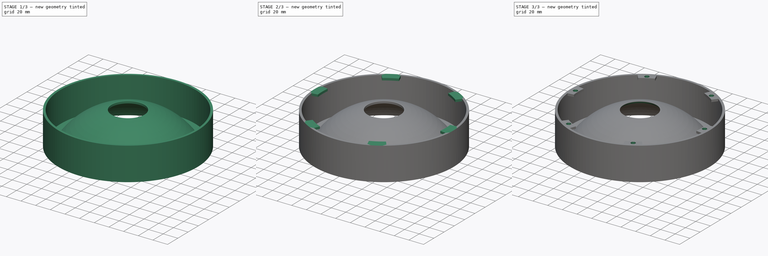
[diagram: build sequence overview — one tinted view per stage of 3, left to right]
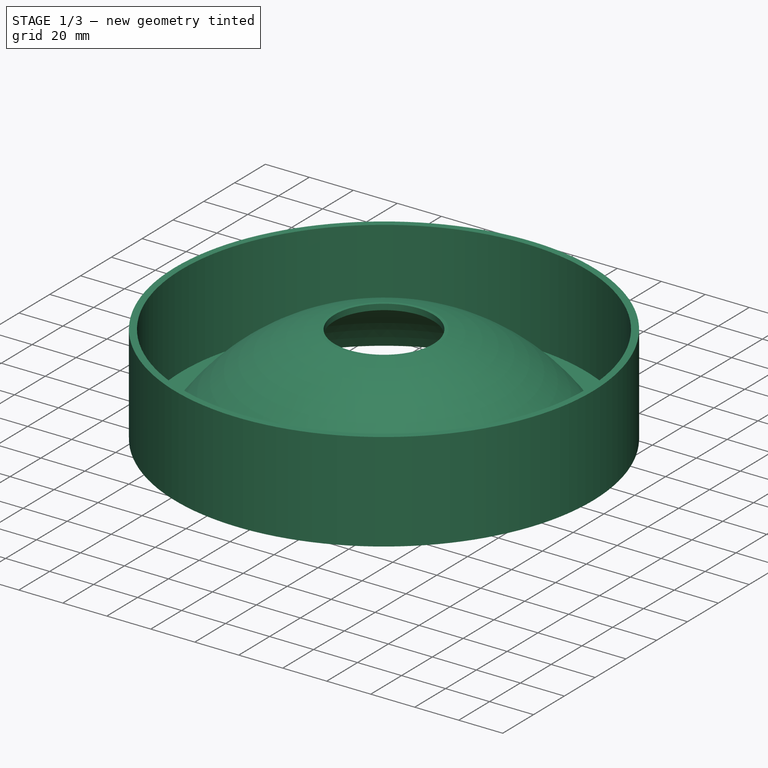
[diagram: stage 1 of 3 — iso view after this stage's code; geometry added in this stage tinted green]
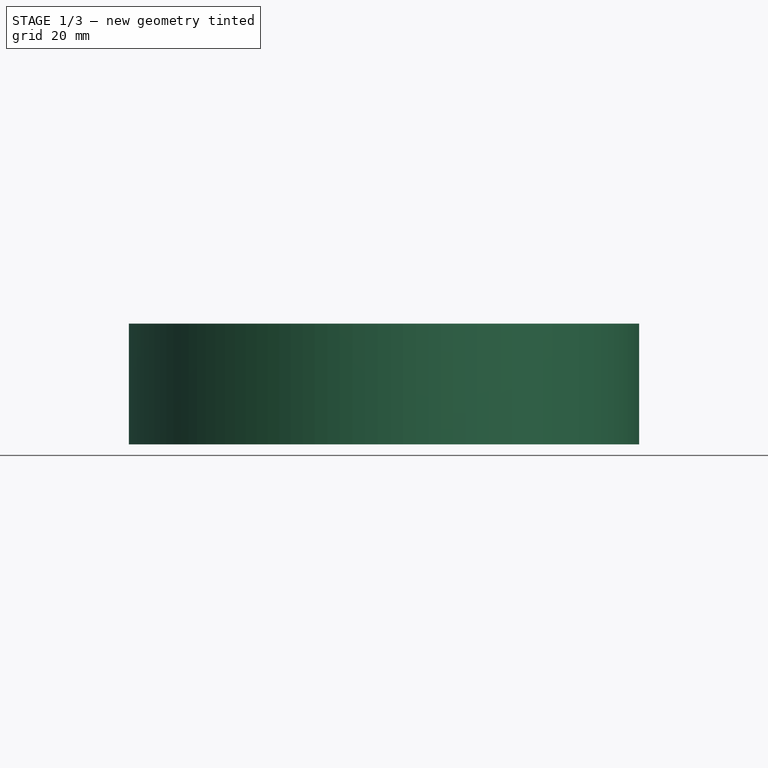
[diagram: stage 1 of 3 — front view after this stage's code; geometry added in this stage tinted green]
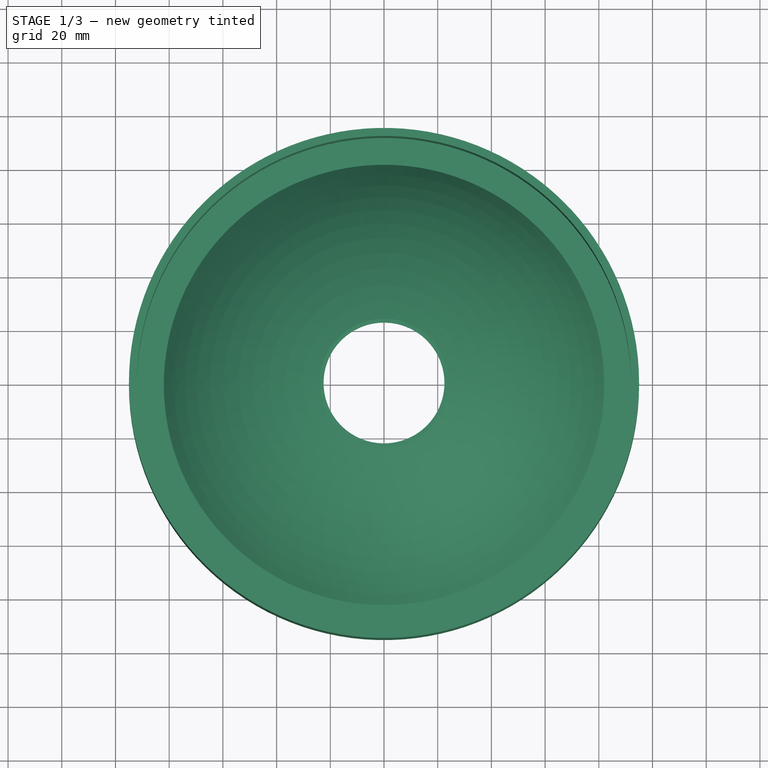
[diagram: stage 1 of 3 — top view after this stage's code; geometry added in this stage tinted green]
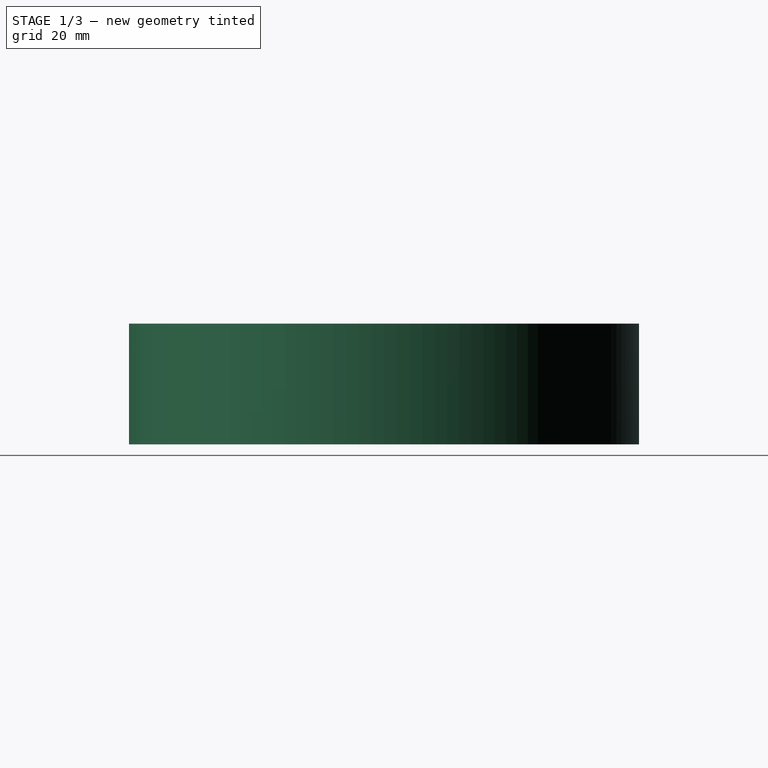
[diagram: stage 1 of 3 — right view after this stage's code; geometry added in this stage tinted green]
FCSTD DOCUMENT  (FreeCAD 0.19R24291 (Git))
Label: tms_v2_base
License: All rights reserved
LicenseURL: http://en.wikipedia.org/wiki/All_rights_reserved
objects: Sketcher::SketchObject×5, PartDesign::Pocket×3, PartDesign::PolarPattern×2, PartDesign::Revolution×1, PartDesign::Pad×1, PartDesign::Chamfer×1, PartDesign::Body×1
note: 20 computed .brp shape members not serialized (recipe doc carries the construction recipe); baked Part::Feature solids carry a one-line shape summary decoded from their .brp

FEATURE [Sketcher::SketchObject] Sketch
  FullyConstrained = false
  MapMode = 5
  Placement = pos=(0,0,0) rot=(1,0,0;1.5708rad)
  Support = -> [XZ_Plane]
  sketch-geometry (8):
    g0: LineSegment StartX=-95 StartY=45 StartZ=0 EndX=-95 EndY=0 EndZ=0
    g1: LineSegment StartX=-95 StartY=0 StartZ=0 EndX=-82 EndY=0 EndZ=0
    g2: ArcOfCircle CenterX=0 CenterY=-52.2111 CenterZ=0 NormalX=0 NormalY=0 NormalZ=1 AngleXU=0 Radius=97.2111 StartAngle=1.5708 EndAngle=2.57461
    g3: LineSegment StartX=6e-15 StartY=45 StartZ=0 EndX=6e-15 EndY=48 EndZ=0
    g4: ArcOfCircle CenterX=0 CenterY=-49.2111 CenterZ=0 NormalX=0 NormalY=0 NormalZ=1 AngleXU=0 Radius=97.2111 StartAngle=1.5708 EndAngle=2.57461
    g5: LineSegment StartX=-82 StartY=3 StartZ=0 EndX=-92 EndY=3 EndZ=0
    g6: LineSegment StartX=-92 StartY=3 StartZ=0 EndX=-92 EndY=45 EndZ=0
    g7: LineSegment StartX=-92 StartY=45 StartZ=0 EndX=-95 EndY=45 EndZ=0
  constraints (25):
    c: Vertical(g0)
    c: Coincident(g0,g1)
    c: Horizontal(g1)
    c: Coincident(g2,g3)
    c: Vertical(g3)
    c: Coincident(g4,g5)
    c: Horizontal(g5)
    c: Coincident(g5,g6)
    c: Vertical(g6)
    c: Coincident(g6,g7)
    c: Coincident(g3,g4)
    c: Coincident(g1,g2)
    c: Horizontal(g7)
    c: Coincident(g0,g7)
    c: DistanceX(g7,g7) = 3
    c: DistanceX(g0,g-1) = 95
    c: DistanceY(g0,g5) = 3
    c: DistanceY(g0,g0) = 45
    c: DistanceY(g2,g3) = 3
    c: DistanceY(g-1,g3) = 48
    c: PointOnObject(g0,g-1)
    c: DistanceY(g2,g4) = 3
    c: PointOnObject(g2,g-2)
    c: PointOnObject(g4,g-2)
    c: DistanceX(g5,g5) = 10
FEATURE [PartDesign::Revolution] Revolution
  Angle = 360
  Axis = (0,2e-16,1)
  Base = (0,0,0)
  Placement = pos=(0,0,0) rot=(1,0,0;1.5708rad)
  Profile = -> Sketch
  ReferenceAxis = -> Sketch [V_Axis]
  Refine = true
FEATURE [Sketcher::SketchObject] Sketch001
  FullyConstrained = true
  MapMode = 5
  Support = -> [XY_Plane]
  sketch-geometry (1):
    g0: Circle CenterX=0 CenterY=0 CenterZ=0 NormalX=0 NormalY=0 NormalZ=1 AngleXU=0 Radius=22.5
  constraints (2):
    c: Coincident(g0,g-1)
    c: Radius(g0) = 22.5
FEATURE [Sketcher::SketchObject] Sketch002
  FullyConstrained = true
  MapMode = 5
  Placement = pos=(0,0,0) rot=(1,0,0;1.5708rad)
  Support = -> [XZ_Plane]
  sketch-geometry (4):
    g0: LineSegment StartX=-75 StartY=65 StartZ=0 EndX=75 EndY=65 EndZ=0
    g1: LineSegment StartX=75 StartY=65 StartZ=0 EndX=75 EndY=45 EndZ=0
    g2: LineSegment StartX=75 StartY=45 StartZ=0 EndX=-75 EndY=45 EndZ=0
    g3: LineSegment StartX=-75 StartY=45 StartZ=0 EndX=-75 EndY=65 EndZ=0
  constraints (11):
    c: Coincident(g0,g1)
    c: Coincident(g1,g2)
    c: Coincident(g2,g3)
    c: Coincident(g3,g0)
    c: Horizontal(g2)
    c: Vertical(g1)
    c: Vertical(g3)
    c: Symmetric(g0,g0,g-2)
    c: DistanceX(g0,g0) = 150
    c: DistanceY(g-1,g2) = 45
    c: DistanceY(g3,g3) = 20
FEATURE [PartDesign::Pocket] Pocket
  BaseFeature = -> Revolution
  Length = 100
  Length2 = 100
  Midplane = true
  Placement = pos=(0,0,0) rot=(1,0,0;1.5708rad)
  Profile = -> Sketch002
  Refine = true
  Type = 0
FEATURE [PartDesign::Pocket] Pocket001
  BaseFeature = -> Pocket
  Length = 5
  Length2 = 100
  Placement = pos=(0,0,0) rot=(1,0,0;1.5708rad)
  Profile = -> Sketch001
  Refine = true
  Reversed = true
  Type = 1
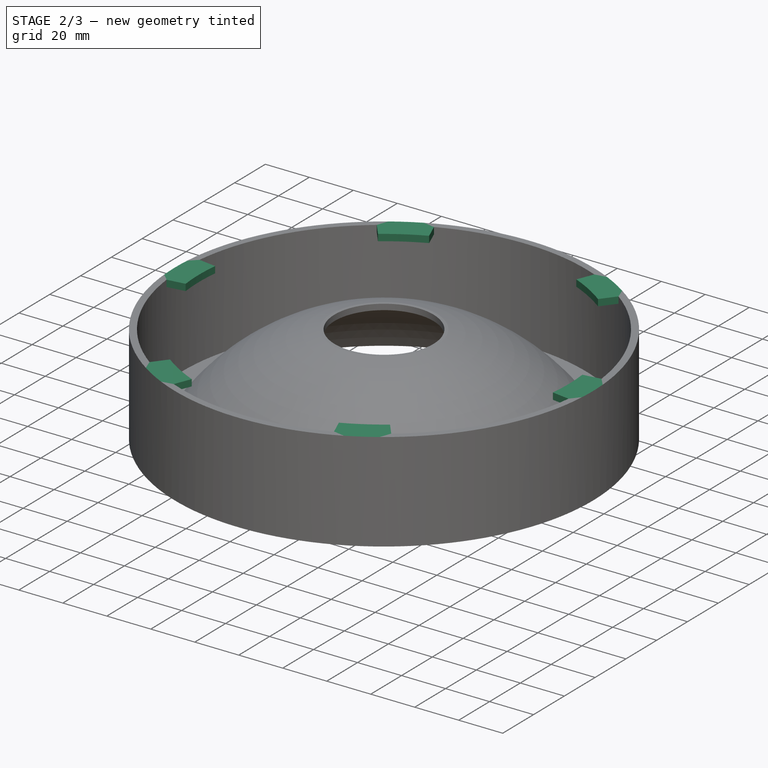
[diagram: stage 2 of 3 — iso view after this stage's code; geometry added in this stage tinted green]
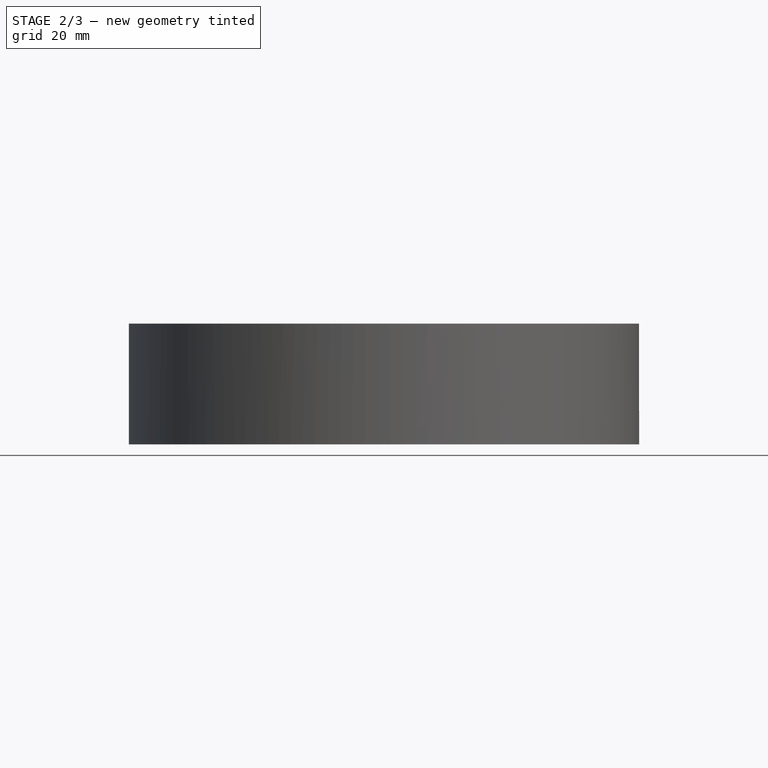
[diagram: stage 2 of 3 — front view after this stage's code; geometry added in this stage tinted green]
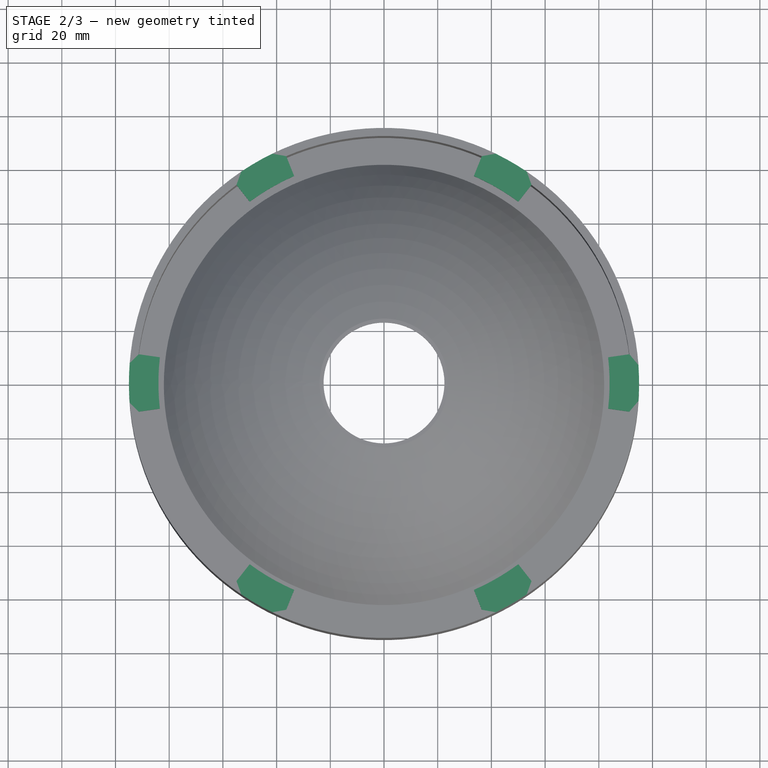
[diagram: stage 2 of 3 — top view after this stage's code; geometry added in this stage tinted green]
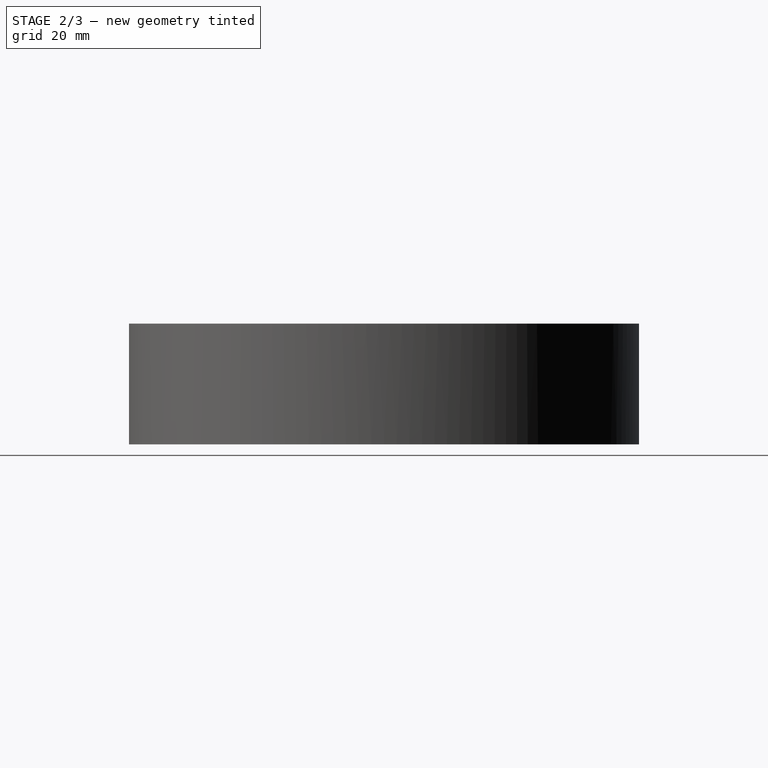
[diagram: stage 2 of 3 — right view after this stage's code; geometry added in this stage tinted green]
FEATURE [Sketcher::SketchObject] Sketch003
  AttachmentOffset = pos=(0,0,45) rot=(0,0,1;0rad)
  ExternalGeometry = -> [Pocket001]
  FullyConstrained = false
  MapMode = 5
  Placement = pos=(0,0,45) rot=(0,0,1;0rad)
  Support = -> [XY_Plane]
  sketch-geometry (8):
    g0: ArcOfCircle CenterX=0 CenterY=0 CenterZ=0 NormalX=0 NormalY=0 NormalZ=1 AngleXU=0 Radius=95 StartAngle=3.02434 EndAngle=3.25884
    g1: LineSegment StartX=0 StartY=0 StartZ=0 EndX=-94.3478 EndY=11.113 EndZ=0
    g2: LineSegment StartX=0 StartY=0 StartZ=0 EndX=-94.3478 EndY=-11.113 EndZ=0
    g3: ArcOfCircle CenterX=0.979522 CenterY=8.4e-15 CenterZ=0 NormalX=0 NormalY=0 NormalZ=1 AngleXU=0 Radius=85 StartAngle=3.02884 EndAngle=3.25434
    g4: LineSegment StartX=-83.4808 StartY=-9.56337 StartZ=0 EndX=0 EndY=0 EndZ=0
    g5: LineSegment StartX=0 StartY=0 StartZ=0 EndX=-83.4808 EndY=9.56337 EndZ=0
    g6: LineSegment StartX=-83.4808 StartY=-9.56337 StartZ=0 EndX=-94.3478 EndY=-11.113 EndZ=0
    g7: LineSegment StartX=-83.4808 StartY=9.56337 StartZ=0 EndX=-94.3478 EndY=11.113 EndZ=0
  constraints (17):
    c: Radius(g0) = 95
    c: Coincident(g1,g0)
    c: Coincident(g2,g0)
    c: Radius(g3) = 85
    c: Coincident(g4,g3)
    c: Coincident(g4,g0)
    c: Coincident(g5,g0)
    c: Coincident(g5,g3)
    c: Coincident(g0,g-1)
    c: Equal(g5,g4)
    c: Coincident(g2,g0)
    c: Symmetric(g0,g0,g-1)
    c: Symmetric(g3,g3,g-1)
    c: Coincident(g6,g3)
    c: Coincident(g6,g0)
    c: Coincident(g7,g3)
    c: Coincident(g7,g0)
FEATURE [PartDesign::Pad] Pad
  BaseFeature = -> Pocket001
  Direction = (1,1,1)
  Length = 3
  Length2 = 100
  Placement = pos=(0,0,0) rot=(1,0,0;1.5708rad)
  Profile = -> Sketch003
  Refine = true
  Reversed = true
  Type = 0
FEATURE [PartDesign::PolarPattern] PolarPattern
  Angle = 360
  Axis = -> Z_Axis
  BaseFeature = -> Pad
  Occurrences = 6
  Originals = -> [Pad]
  Placement = pos=(0,0,0) rot=(1,0,0;1.5708rad)
  Refine = true
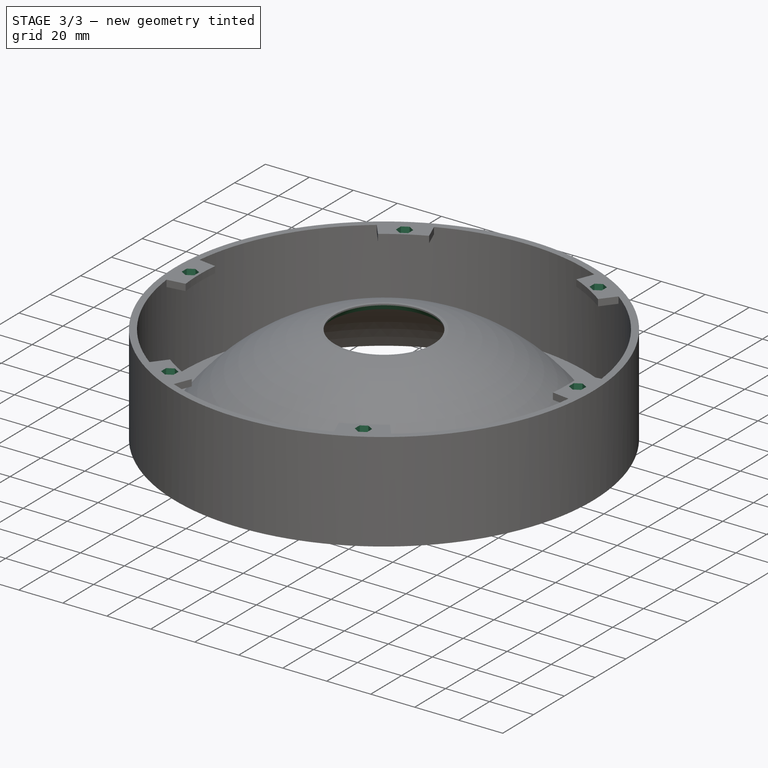
[diagram: stage 3 of 3 — iso view after this stage's code; geometry added in this stage tinted green]
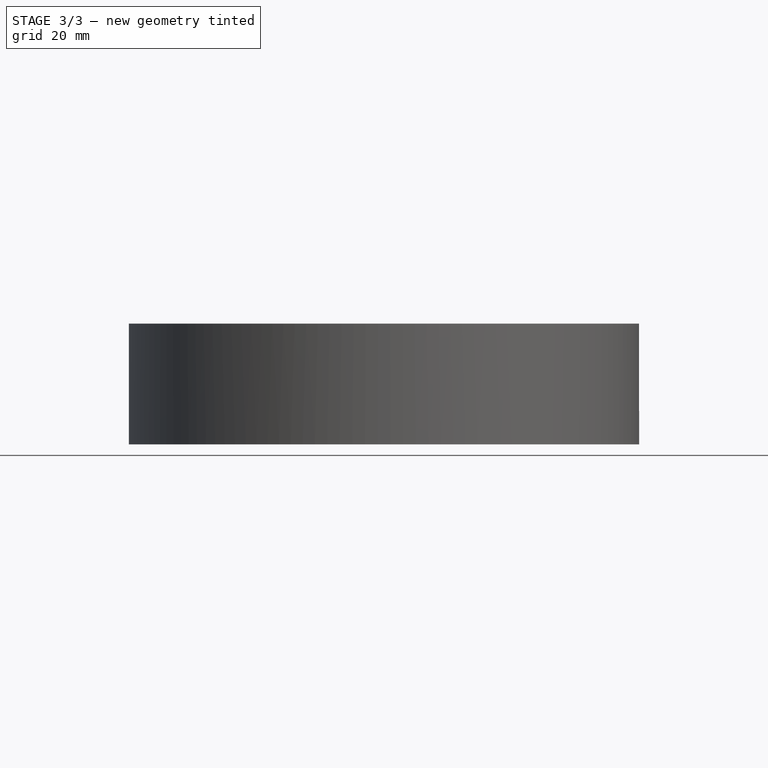
[diagram: stage 3 of 3 — front view after this stage's code; geometry added in this stage tinted green]
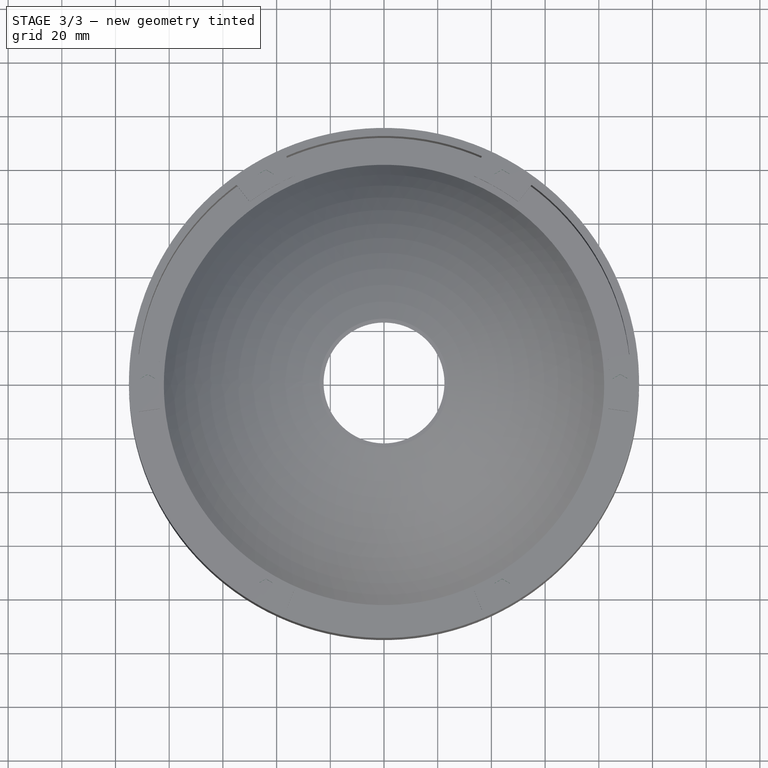
[diagram: stage 3 of 3 — top view after this stage's code; geometry added in this stage tinted green]
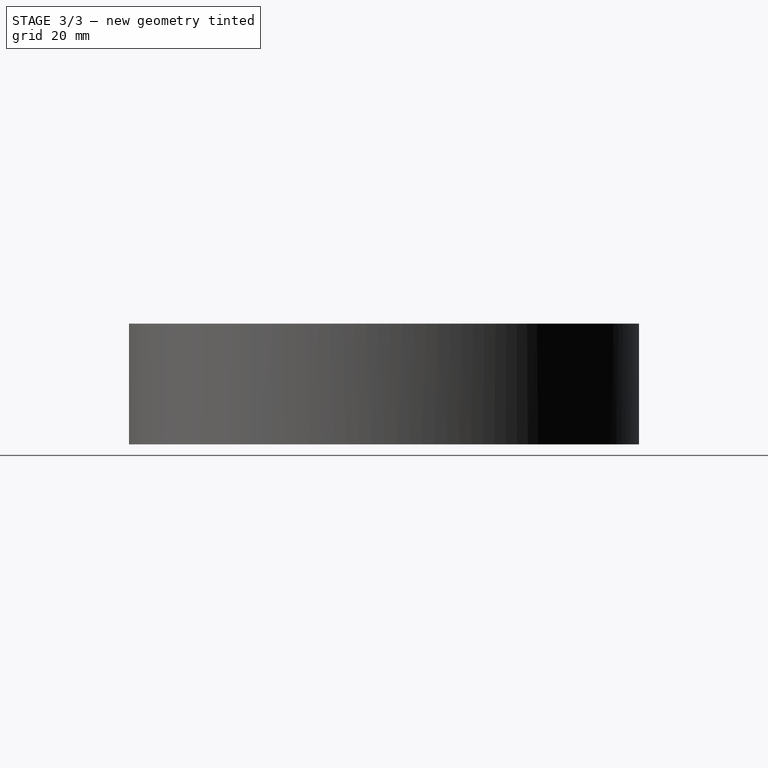
[diagram: stage 3 of 3 — right view after this stage's code; geometry added in this stage tinted green]
FEATURE [Sketcher::SketchObject] Sketch004
  AttachmentOffset = pos=(0,0,45) rot=(0,0,1;0rad)
  FullyConstrained = true
  MapMode = 5
  Placement = pos=(0,0,45) rot=(0,0,1;0rad)
  Support = -> [XY_Plane]
  sketch-geometry (7):
    g0: LineSegment StartX=-85.1854 StartY=1.625 StartZ=0 EndX=-88 EndY=3.25 EndZ=0
    g1: LineSegment StartX=-88 StartY=3.25 StartZ=0 EndX=-90.8146 EndY=1.625 EndZ=0
    g2: LineSegment StartX=-90.8146 StartY=1.625 StartZ=0 EndX=-90.8146 EndY=-1.625 EndZ=0
    g3: LineSegment StartX=-90.8146 StartY=-1.625 StartZ=0 EndX=-88 EndY=-3.25 EndZ=0
    g4: LineSegment StartX=-88 StartY=-3.25 StartZ=0 EndX=-85.1854 EndY=-1.625 EndZ=0
    g5: LineSegment StartX=-85.1854 StartY=-1.625 StartZ=0 EndX=-85.1854 EndY=1.625 EndZ=0
    g6: Circle CenterX=-88 CenterY=0 CenterZ=0 NormalX=0 NormalY=0 NormalZ=1 AngleXU=0 Radius=3.25
  constraints (17):
    c: Coincident(g0,g1)
    c: Coincident(g1,g2)
    c: Coincident(g2,g3)
    c: Coincident(g3,g4)
    c: Coincident(g4,g5)
    c: Coincident(g5,g0)
    c: Equal(g0, g1-g5) x5
    c: PointOnObject(g0,g6)
    c: PointOnObject(g1,g6)
    c: PointOnObject(g2,g6)
    c: PointOnObject(g3,g6)
    c: PointOnObject(g4,g6)
    c: PointOnObject(g5,g6)
    c: PointOnObject(g6,g-1)
    c: Radius(g6) = 3.25
    c: DistanceX(g6,g-1) = 88
    c: Vertical(g2)
FEATURE [PartDesign::Pocket] Pocket002
  BaseFeature = -> PolarPattern
  Length = 5
  Length2 = 100
  Placement = pos=(0,0,0) rot=(1,0,0;1.5708rad)
  Profile = -> Sketch004
  Refine = true
  Type = 0
FEATURE [PartDesign::PolarPattern] PolarPattern001
  Angle = 360
  Axis = -> Z_Axis
  BaseFeature = -> Pocket002
  Occurrences = 6
  Originals = -> [Pocket002]
  Placement = pos=(0,0,0) rot=(1,0,0;1.5708rad)
  Refine = true
FEATURE [PartDesign::Chamfer] Chamfer
  Angle = 45
  Base = -> PolarPattern001 [Edge17,Edge18]
  BaseFeature = -> PolarPattern001
  ChamferType = 0
  FlipDirection = false
  Placement = pos=(0,0,0) rot=(1,0,0;1.5708rad)
  Refine = true
  Size = 2
  Size2 = 1
  SupportTransform = false
FEATURE [PartDesign::Body] Body
  Group = -> [Sketch,Revolution,Sketch001,Sketch002,Pocket,Pocket001,Sketch003,Pad,PolarPattern,Sketch004,Pocket002,PolarPattern001,Chamfer]
  Origin = -> Origin
  Tip = -> Chamfer
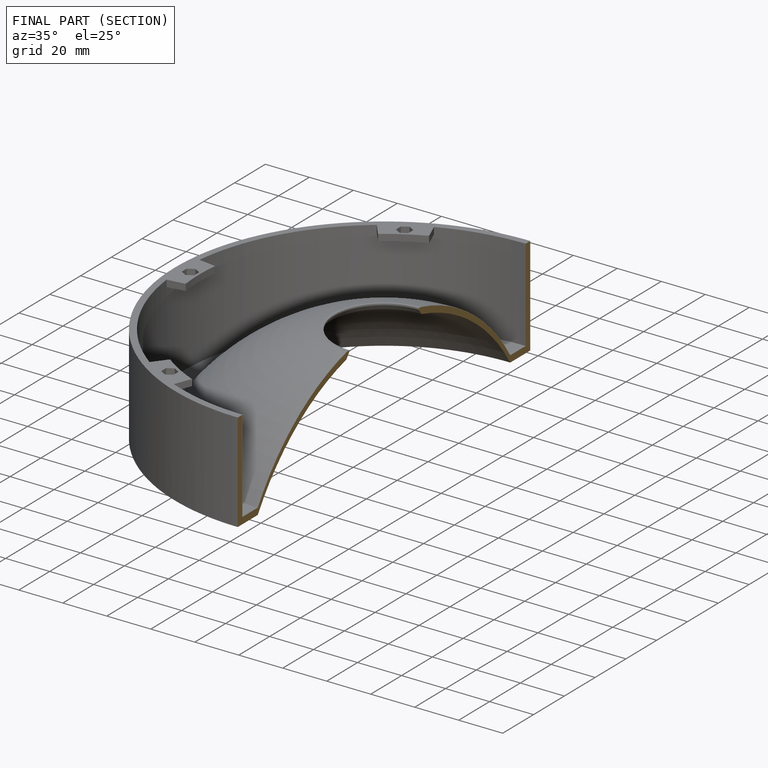
[diagram: finished part — half-section view (interior)]
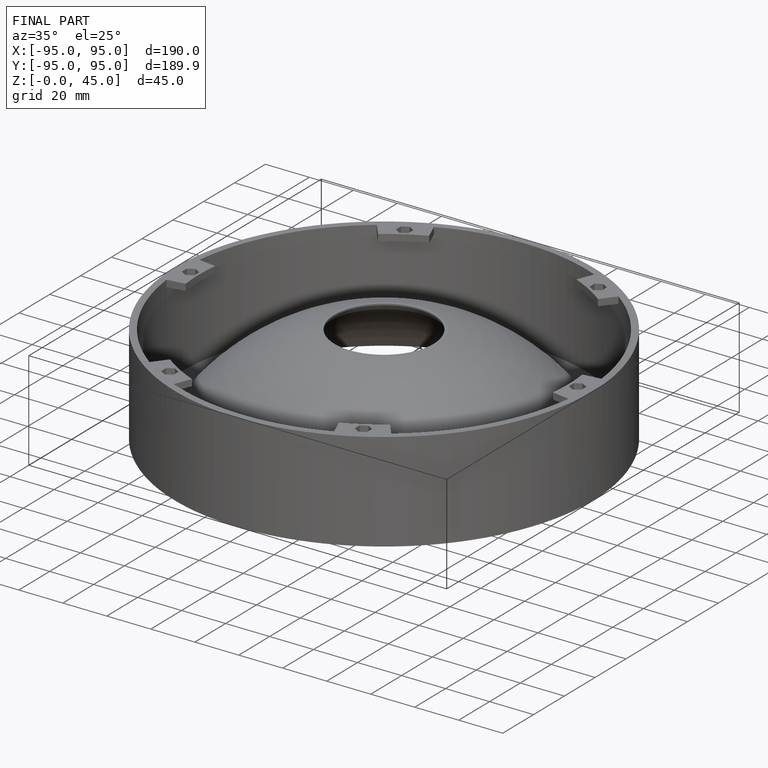
[diagram: finished part — iso view with bounding-box wireframe]
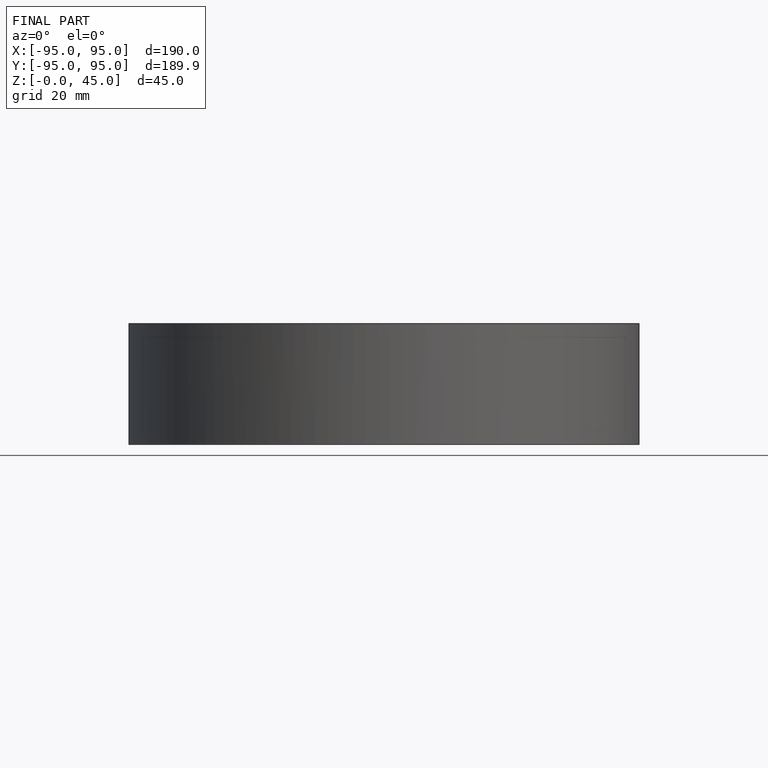
[diagram: finished part — front view with bounding-box wireframe]
